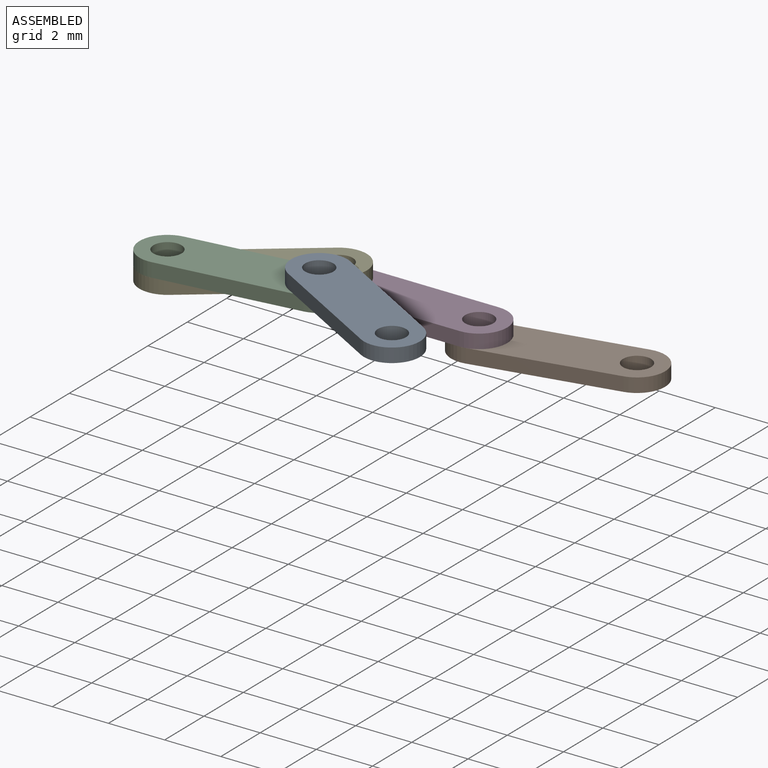
[diagram: assembled view]
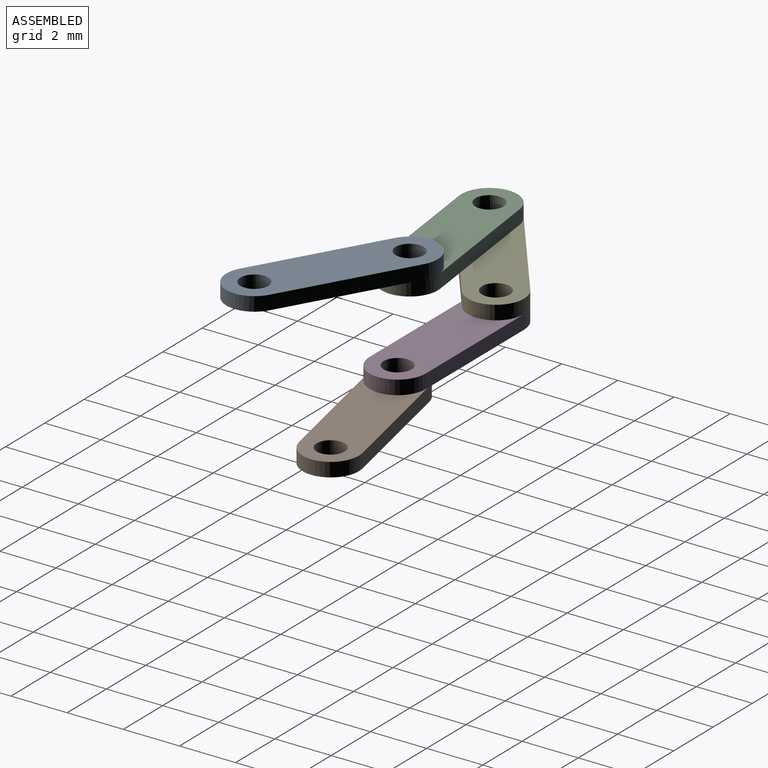
[diagram: assembled view, second angle]
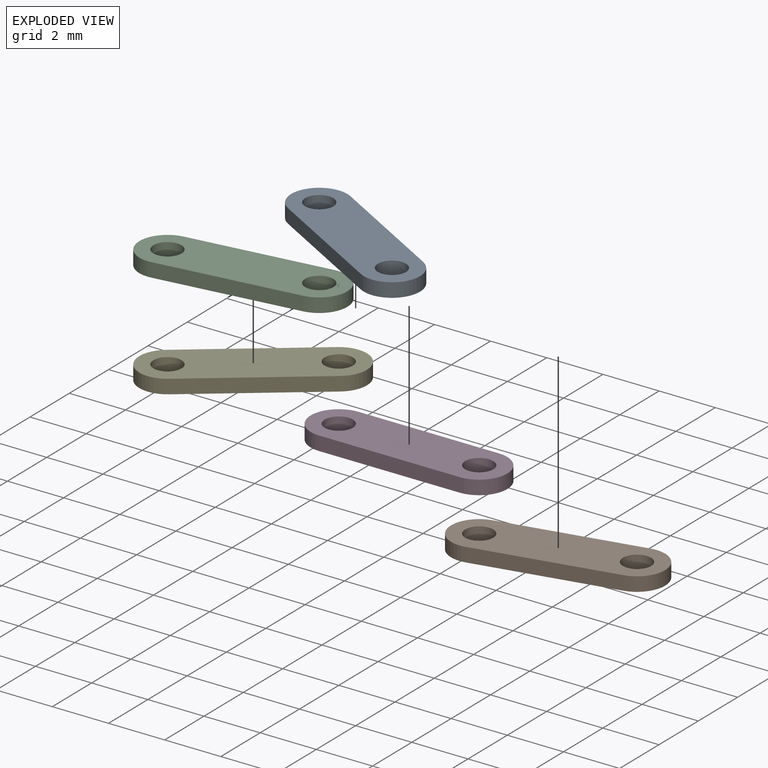
[diagram: exploded view]
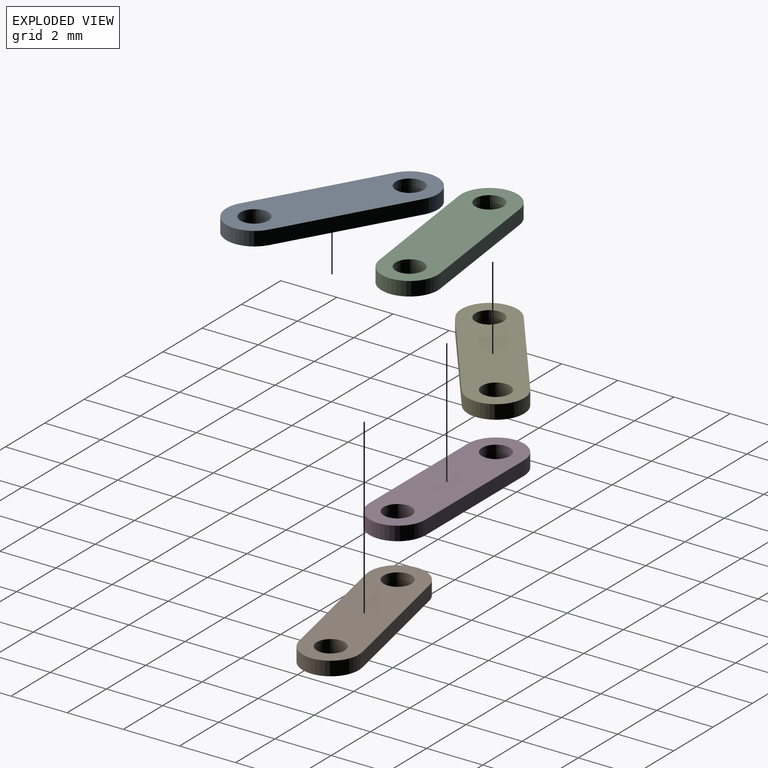
[diagram: exploded view, second angle]
ASSEMBLY  parts=5 mates=4
PART A: 8 faces, bbox 7x2x0.5 mm
  f0: plane 5x0.5mm, normal (0,-1,0), area 2.5mm2, adj f1,f4,f6,f7
  f1: cylinder r=1mm len=2mm, axis (0,0,-1), area 1.6mm2, adj f0,f2,f6,f7
  f2: plane 5x0.5mm, normal (0,1,0), area 2.5mm2, adj f1,f4,f6,f7
  f3: cylinder r=0.5mm len=1mm, axis (0,0,-1), area 1.6mm2, adj f6,f7
  f4: cylinder r=1mm len=2mm, axis (0,0,-1), area 1.6mm2, adj f0,f2,f6,f7
  f5: cylinder r=0.5mm len=1mm, axis (0,0,-1), area 1.6mm2, adj f6,f7
  f6: plane 7x2mm, normal (0,0,1), area 11.6mm2, adj f0,f1,f2,f3,f4,f5
  f7: plane 7x2mm, normal (0,0,-1), area 11.6mm2, adj f0,f1,f2,f3,f4,f5
PART B: same geometry as A
PART C: same geometry as A
PART D: same geometry as A
PART E: same geometry as A
PLACE A rot(axis=(-0.97,0.26,0),180deg) t=(-1.39,-5.31,2.84)mm
PLACE B rot(axis=(0,0,1),12deg) t=(3.19,0.62,0.34)mm
PLACE C rot(axis=(-1,-0.06,0),180deg) t=(-5.73,-2.81,2.34)mm
PLACE D t=(-1.7,-0.42,0.84)mm fixed
PLACE E rot(axis=(-0.95,-0.32,0),180deg) t=(-6.7,-0.42,1.84)mm
MATE revolute C.f3 <-> E.f4  axis (0,0,-1) through (-10.69,-3.45,1.84)mm
MATE revolute E.f5 <-> D.f3  axis (0,0,-1) through (-6.7,-0.42,1.34)mm
MATE revolute A.f3 <-> C.f1  axis (0,0,-1) through (-5.73,-2.81,2.34)mm
MATE revolute B.f3 <-> D.f5  axis (0,0,1) through (-1.7,-0.42,0.84)mm
